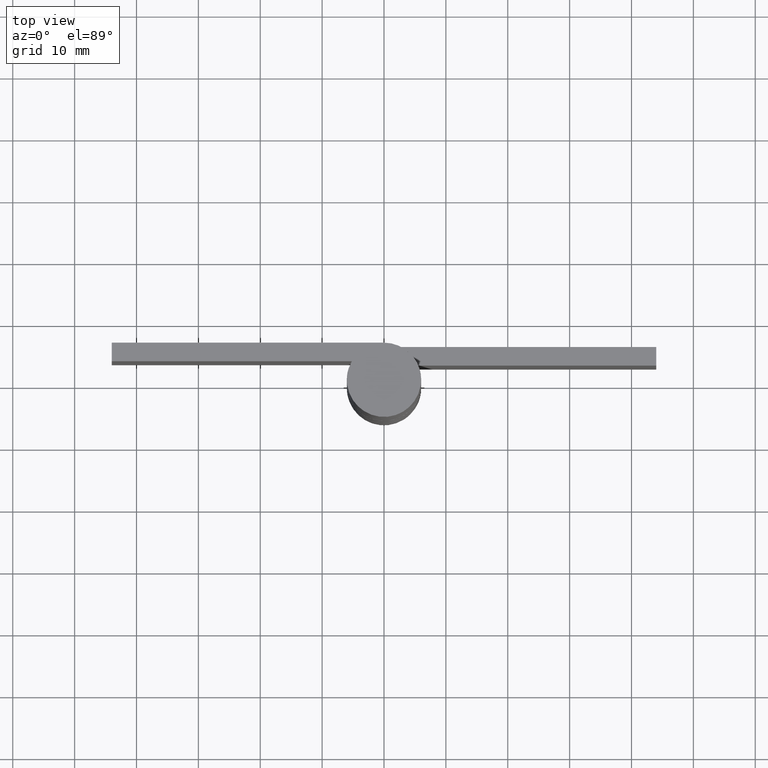
[diagram: clean part render]
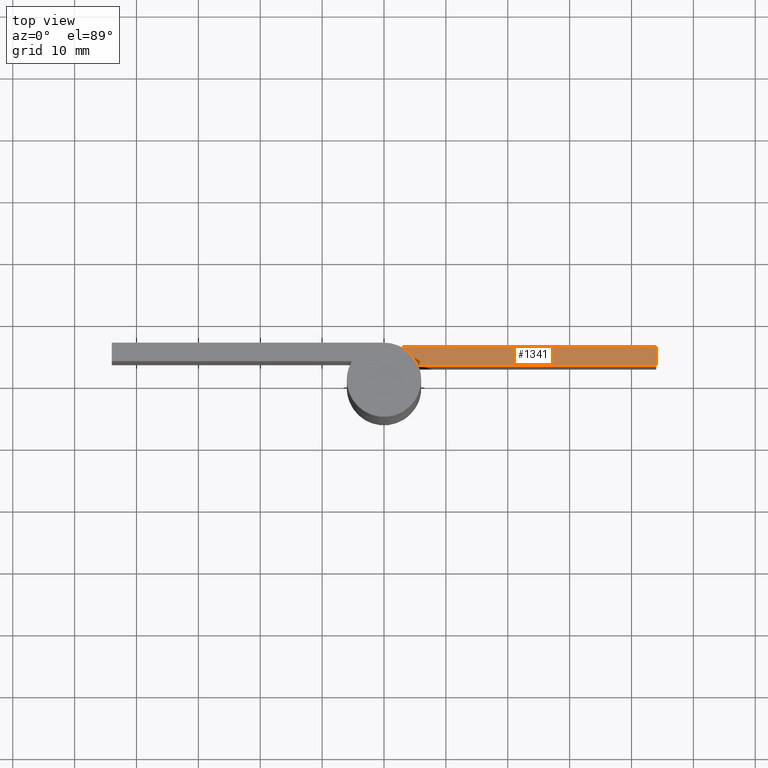
[diagram: same view with one face highlighted and labeled with its STEP entity id]
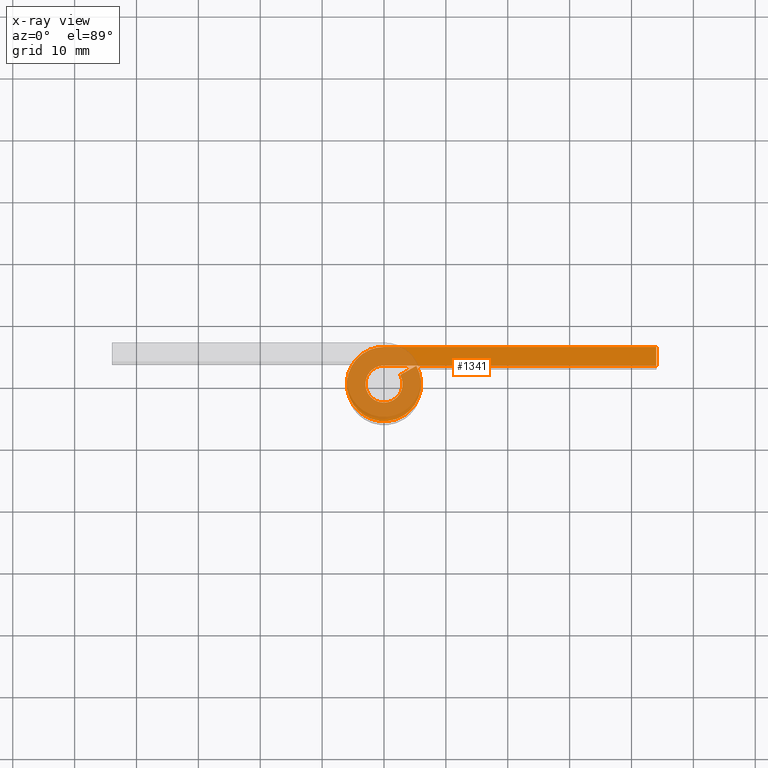
[diagram: x-ray of the same camera — body ghosted, the highlighted face saturated]
A machine part, top view. The second image highlights one B-rep face of the part: STEP entity #1341.
The next image is the same camera in x-ray: the body ghosted, the highlighted face saturated — about 40% of this face is hidden behind the body in this view.
In plain terms, the highlighted face is a freeform B-spline surface patch.
Its self-contained STEP definition (entity closure, byte-faithful):
#1264=CARTESIAN_POINT('',(-8.497481848039559,-6.599295372240619,37.500000000000000));
#1265=CARTESIAN_POINT('',(46.497484671642937,-6.599295372240619,37.500000000000000));
#1266=CARTESIAN_POINT('',(-8.497481848039559,6.599395322181747,37.500000000000000));
#1267=CARTESIAN_POINT('',(46.497484671642937,6.599395322181747,37.500000000000000));
#1268=B_SPLINE_SURFACE_WITH_KNOTS('',1,1,((#1264,#1266),(#1265,#1267)),.UNSPECIFIED.,.F.,.F.,.U.,(2,2),(2,2),(0.0,54.994966519682492),(0.0,13.198690694422361),.UNSPECIFIED.);
#1269=CARTESIAN_POINT('',(-0.000007999999995,6.0,37.500000000000000));
#1270=VERTEX_POINT('',#1269);
#1271=CARTESIAN_POINT('',(43.999984999999803,6.0,37.500000000000000));
#1272=VERTEX_POINT('',#1271);
#1273=CARTESIAN_POINT('',(-0.000007999999995,6.0,37.500000000000000));
#1274=CARTESIAN_POINT('',(43.999984999999803,6.0,37.500000000000000));
#1275=QUASI_UNIFORM_CURVE('',1,(#1273,#1274),.UNSPECIFIED.,.F.,.U.);
#1276=EDGE_CURVE('',#1270,#1272,#1275,.T.);
#1277=ORIENTED_EDGE('',*,*,#1276,.F.);
#1278=CARTESIAN_POINT('',(5.224692948379730,2.950000000000000,37.500000000000000));
#1279=VERTEX_POINT('',#1278);
#1280=CARTESIAN_POINT('',(5.224692948379732,2.949999999999999,37.500000000000000));
#1281=CARTESIAN_POINT('',(7.482690713737880,-1.049106124103736,37.500000000000000));
#1282=CARTESIAN_POINT('',(4.211988565981436,-4.273065050775689,37.500000000000000));
#1283=CARTESIAN_POINT('',(0.941286418224992,-7.497023977447647,37.500000000000000));
#1284=CARTESIAN_POINT('',(-3.024904692450833,-5.181698563212644,37.500000000000000));
#1285=CARTESIAN_POINT('',(-6.991095803126648,-2.866373148977649,37.500000000000000));
#1286=CARTESIAN_POINT('',(-5.791820815486865,1.566813425511171,37.500000000000000));
#1287=CARTESIAN_POINT('',(-4.592545827847078,5.999999999999999,37.500000000000000));
#1288=CARTESIAN_POINT('',(-0.000007999999994,6.0,37.500000000000000));
#1296=(BOUNDED_CURVE()B_SPLINE_CURVE(2,(#1280,#1281,#1282,#1283,#1284,#1285,#1286,#1287,#1288),.UNSPECIFIED.,.F.,.U.)B_SPLINE_CURVE_WITH_KNOTS((3,2,2,2,3),(0.0,0.250000000000000,0.500000000000000,0.750000000000000,1.0),.UNSPECIFIED.)CURVE()GEOMETRIC_REPRESENTATION_ITEM()RATIONAL_B_SPLINE_CURVE((1.0,0.794082983987986,1.0,0.794082983987986,1.0,0.794082983987986,1.0,0.794082983987986,1.0))REPRESENTATION_ITEM(''));
#1297=EDGE_CURVE('',#1279,#1270,#1296,.T.);
#1298=ORIENTED_EDGE('',*,*,#1297,.F.);
#1299=CARTESIAN_POINT('',(2.612342474189870,1.475000000000000,37.500000000000000));
#1300=VERTEX_POINT('',#1299);
#1301=CARTESIAN_POINT('',(2.612342474189870,1.475000000000000,37.500000000000000));
#1302=CARTESIAN_POINT('',(5.224692948379730,2.950000000000000,37.500000000000000));
#1303=QUASI_UNIFORM_CURVE('',1,(#1301,#1302),.UNSPECIFIED.,.F.,.U.);
#1304=EDGE_CURVE('',#1300,#1279,#1303,.T.);
#1305=ORIENTED_EDGE('',*,*,#1304,.F.);
#1306=CARTESIAN_POINT('',(-0.000007999999994,3.0,37.500000000000000));
#1307=VERTEX_POINT('',#1306);
#1308=CARTESIAN_POINT('',(2.612342474189869,1.475000000000000,37.500000000000000));
#1309=CARTESIAN_POINT('',(3.741341356868943,-0.524553062051868,37.500000000000000));
#1310=CARTESIAN_POINT('',(2.105990282990721,-2.136532525387845,37.500000000000000));
#1311=CARTESIAN_POINT('',(0.470639209112499,-3.748511988723822,37.500000000000000));
#1312=CARTESIAN_POINT('',(-1.512456346225414,-2.590849281606322,37.500000000000000));
#1313=CARTESIAN_POINT('',(-3.495551901563321,-1.433186574488824,37.500000000000000));
#1314=CARTESIAN_POINT('',(-2.895914407743430,0.783406712755585,37.500000000000000));
#1315=CARTESIAN_POINT('',(-2.296276913923536,3.000000000000000,37.500000000000000));
#1316=CARTESIAN_POINT('',(-0.000007999999994,3.0,37.500000000000000));
#1324=(BOUNDED_CURVE()B_SPLINE_CURVE(2,(#1308,#1309,#1310,#1311,#1312,#1313,#1314,#1315,#1316),.UNSPECIFIED.,.F.,.U.)B_SPLINE_CURVE_WITH_KNOTS((3,2,2,2,3),(0.0,0.250000000000000,0.500000000000000,0.750000000000000,1.0),.UNSPECIFIED.)CURVE()GEOMETRIC_REPRESENTATION_ITEM()RATIONAL_B_SPLINE_CURVE((1.0,0.794082983987986,1.0,0.794082983987986,1.0,0.794082983987986,1.0,0.794082983987986,1.0))REPRESENTATION_ITEM(''));
#1325=EDGE_CURVE('',#1300,#1307,#1324,.T.);
#1326=ORIENTED_EDGE('',*,*,#1325,.T.);
#1327=CARTESIAN_POINT('',(43.999984999999803,3.0,37.500000000000000));
#1328=VERTEX_POINT('',#1327);
#1329=CARTESIAN_POINT('',(43.999984999999803,3.0,37.500000000000000));
#1330=CARTESIAN_POINT('',(-0.000007999999994,3.0,37.500000000000000));
#1331=QUASI_UNIFORM_CURVE('',1,(#1329,#1330),.UNSPECIFIED.,.F.,.U.);
#1332=EDGE_CURVE('',#1328,#1307,#1331,.T.);
#1333=ORIENTED_EDGE('',*,*,#1332,.F.);
#1334=CARTESIAN_POINT('',(43.999984999999803,6.0,37.500000000000000));
#1335=CARTESIAN_POINT('',(43.999984999999803,3.0,37.500000000000000));
#1336=QUASI_UNIFORM_CURVE('',1,(#1334,#1335),.UNSPECIFIED.,.F.,.U.);
#1337=EDGE_CURVE('',#1272,#1328,#1336,.T.);
#1338=ORIENTED_EDGE('',*,*,#1337,.F.);
#1339=EDGE_LOOP('',(#1277,#1298,#1305,#1326,#1333,#1338));
#1340=FACE_OUTER_BOUND('',#1339,.T.);
#1341=ADVANCED_FACE('',(#1340),#1268,.T.);